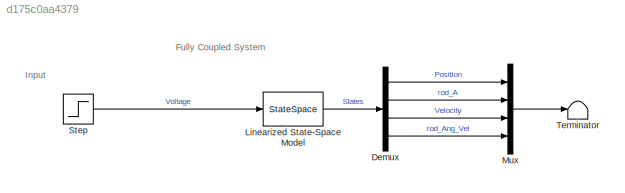
MODEL slx_d175c0aa4379
KIND model
CONFIG AbsTol = auto
CONFIG EnableMultiTasking = off
CONFIG FixedStep = simPrm.dt
CONFIG MaxStep = auto
CONFIG MinStep = auto
CONFIG RelTol = 1e-3
CONFIG SampleTimeConstraint = Unconstrained
CONFIG Solver = ode3
CONFIG SolverName = ode3
CONFIG StartTime = 0.0
CONFIG StopTime = simPrm.tEnd
BLOCK [Demux] Demux
  Ports = [1, 4]
BLOCK [StateSpace] Linearized State-Space Model
  A = A
  B = B
  C = C
  D = D
  InitialCondition = 0
  Ports = [1, 1]
BLOCK [Mux] Mux
  DisplayOption = bar
  Ports = [4, 1]
BLOCK [Step] Step
  After = V
  AttributesFormatString = %<After>
  SampleTime = 0
  Time = Input.ts
BLOCK [Terminator] Terminator
ANNOTATION (root): Fully Coupled System
ANNOTATION (root): Input
LINE Demux:1 -> Mux:1
LINE Demux:2 -> Mux:2
LINE Demux:3 -> Mux:3
LINE Demux:4 -> Mux:4
LINE Linearized State-Space Model:1 -> Demux:1
LINE Mux:1 -> Terminator:1
LINE Step:1 -> Linearized State-Space Model:1
